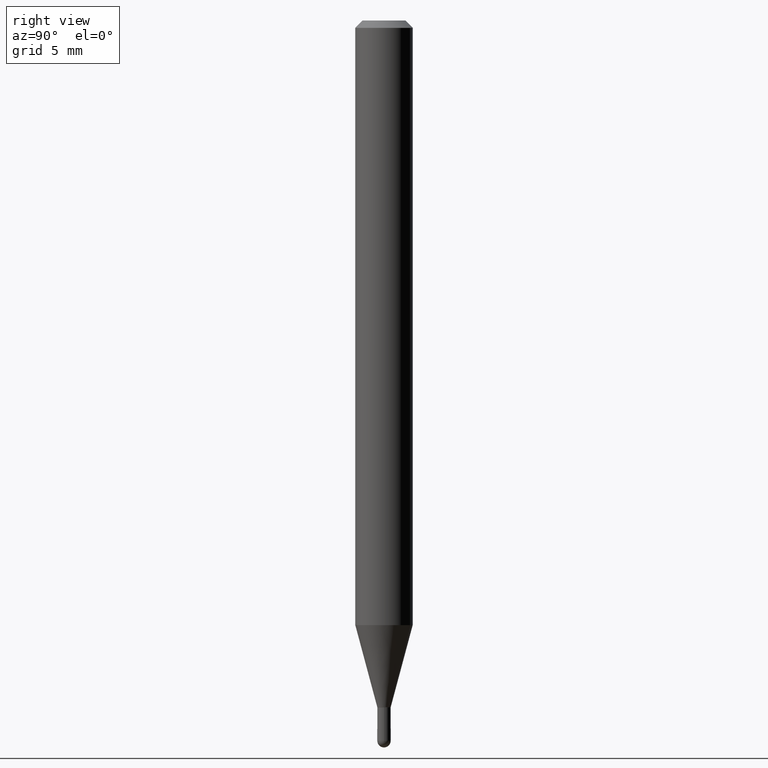
[diagram: clean part render]
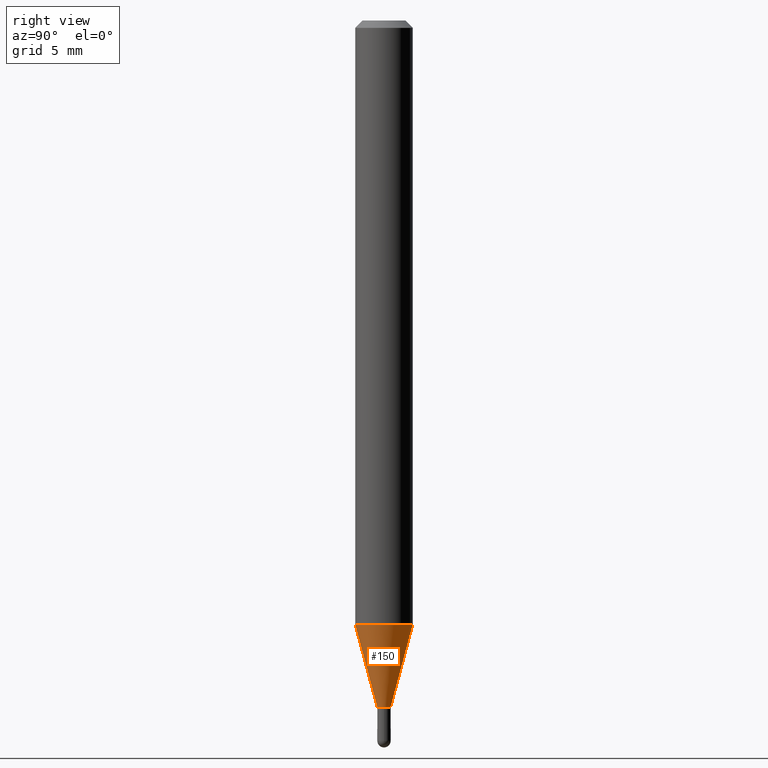
[diagram: same view with one face highlighted and labeled with its STEP entity id]
A machine part, right view. The second image highlights one B-rep face of the part: STEP entity #150.
In plain terms, the highlighted conical surface has half-angle 15 deg.
Its self-contained STEP definition (entity closure, byte-faithful):
#4 = VERTEX_POINT ( 'NONE', #184 ) ;
#5 = DIRECTION ( 'NONE',  ( -2.445466752382438032E-29, 3.491484280005505170E-15, 1.000000000000000000 ) ) ;
#21 = VECTOR ( 'NONE', #376, 39.37007874015748143 ) ;
#32 = CONICAL_SURFACE ( 'NONE', #112, 0.01379999999999992344, 0.2617993877991576790 ) ;
#70 = CARTESIAN_POINT ( 'NONE',  ( -9.636488495203536860E-17, -0.01380000000000485873, -1.413100000000000023 ) ) ;
#79 = LINE ( 'NONE', #240, #327 ) ;
#82 = DIRECTION ( 'NONE',  ( 1.839019923739650802E-15, 0.2588190451025320638, 0.9659258262890650926 ) ) ;
#90 = FACE_OUTER_BOUND ( 'NONE', #162, .T. ) ;
#112 = AXIS2_PLACEMENT_3D ( 'NONE', #161, #5, #365 ) ;
#116 = ORIENTED_EDGE ( 'NONE', *, *, #481, .F. ) ;
#136 = DIRECTION ( 'NONE',  ( -2.445466752382438032E-29, 3.491484280005505170E-15, 1.000000000000000000 ) ) ;
#150 = ADVANCED_FACE ( 'NONE', ( #90 ), #32, .T. ) ;
#158 = VERTEX_POINT ( 'NONE', #477 ) ;
#161 = CARTESIAN_POINT ( 'NONE',  ( 3.455689067791622925E-29, -4.933816436075779894E-15, -1.413100000000000023 ) ) ;
#162 = EDGE_LOOP ( 'NONE', ( #419, #490, #298, #116 ) ) ;
#184 = CARTESIAN_POINT ( 'NONE',  ( 4.195754854663694204E-16, 0.05904999999999564764, -1.244224700957513807 ) ) ;
#195 = EDGE_CURVE ( 'NONE', #242, #4, #79, .T. ) ;
#230 = CIRCLE ( 'NONE', #505, 0.05904999999999999832 ) ;
#232 = CIRCLE ( 'NONE', #300, 0.01379999999999992344 ) ;
#238 = EDGE_CURVE ( 'NONE', #436, #242, #232, .T. ) ;
#240 = CARTESIAN_POINT ( 'NONE',  ( 9.805489753492783129E-17, 0.01379999999999498989, -1.413100000000000023 ) ) ;
#242 = VERTEX_POINT ( 'NONE', #493 ) ;
#247 = DIRECTION ( 'NONE',  ( -2.445466752382438032E-29, 3.491484280005505170E-15, 1.000000000000000000 ) ) ;
#253 = DIRECTION ( 'NONE',  ( -6.982962677686265922E-15, -1.000000000000000000, 4.626330217890369336E-15 ) ) ;
#294 = CARTESIAN_POINT ( 'NONE',  ( 3.042710138684580835E-29, -4.344190984187709840E-15, -1.244224700957513585 ) ) ;
#298 = ORIENTED_EDGE ( 'NONE', *, *, #507, .F. ) ;
#300 = AXIS2_PLACEMENT_3D ( 'NONE', #484, #247, #333 ) ;
#325 = LINE ( 'NONE', #374, #21 ) ;
#327 = VECTOR ( 'NONE', #82, 39.37007874015748854 ) ;
#333 = DIRECTION ( 'NONE',  ( -6.982962677686265922E-15, -1.000000000000000000, 0.000000000000000000 ) ) ;
#365 = DIRECTION ( 'NONE',  ( -6.982962677686265922E-15, -1.000000000000000000, 0.000000000000000000 ) ) ;
#374 = CARTESIAN_POINT ( 'NONE',  ( -9.636488495203536860E-17, -0.01380000000000485873, -1.413100000000000023 ) ) ;
#376 = DIRECTION ( 'NONE',  ( -1.807323732225380232E-15, -0.2588190451025253469, 0.9659258262890670910 ) ) ;
#419 = ORIENTED_EDGE ( 'NONE', *, *, #238, .T. ) ;
#436 = VERTEX_POINT ( 'NONE', #70 ) ;
#477 = CARTESIAN_POINT ( 'NONE',  ( -4.123439461173436122E-16, -0.05905000000000434207, -1.244224700957513363 ) ) ;
#481 = EDGE_CURVE ( 'NONE', #436, #158, #325, .T. ) ;
#484 = CARTESIAN_POINT ( 'NONE',  ( 3.455689067791622925E-29, -4.933816436075779894E-15, -1.413100000000000023 ) ) ;
#490 = ORIENTED_EDGE ( 'NONE', *, *, #195, .T. ) ;
#493 = CARTESIAN_POINT ( 'NONE',  ( 2.588151915006488292E-16, 0.01379999999999498989, -1.413100000000000023 ) ) ;
#505 = AXIS2_PLACEMENT_3D ( 'NONE', #294, #136, #253 ) ;
#507 = EDGE_CURVE ( 'NONE', #158, #4, #230, .T. ) ;